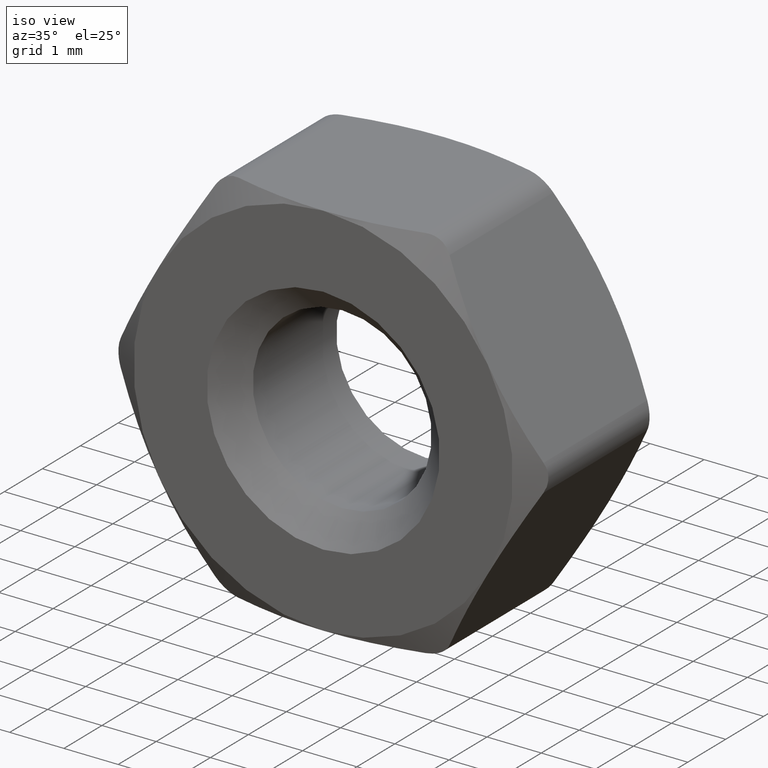
[diagram: clean part render]
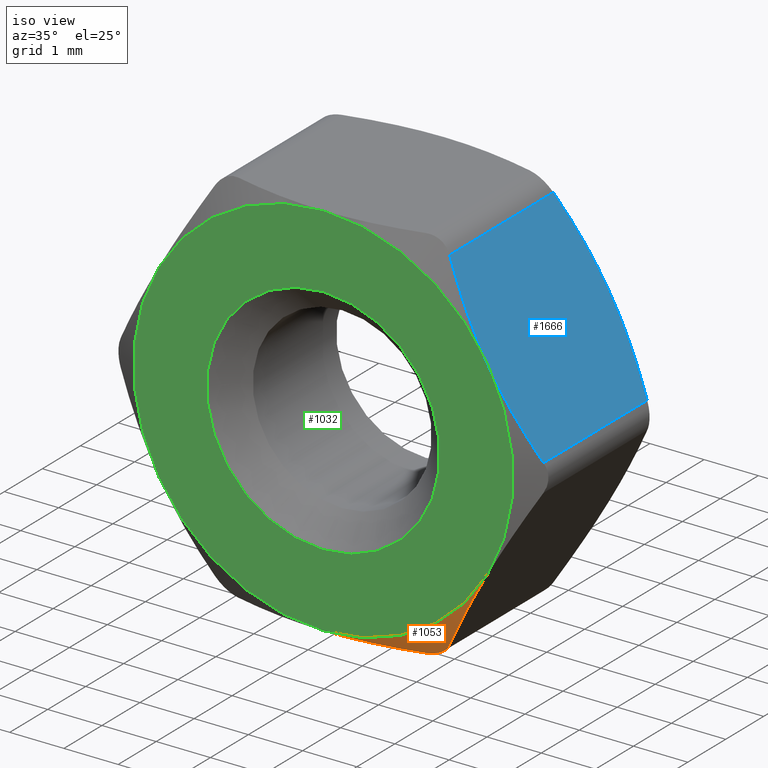
[diagram: same view with three faces highlighted in distinct colors, each labeled with its STEP entity id]
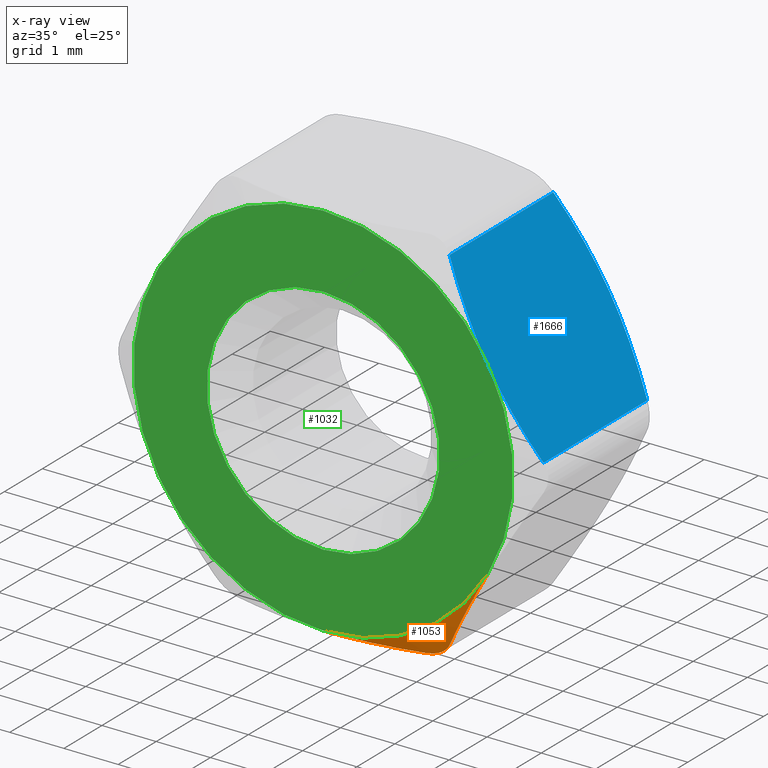
[diagram: x-ray of the same camera — body ghosted, the three highlighted faces saturated]
A machine part, iso view with three faces highlighted in distinct colors.
The next image is the same camera in x-ray (body ghosted, the three faces saturated) — at least one of them is partly hidden behind the body in this view.
Their STEP definitions:

[orange] entity #1053 — the highlighted conical surface has half-angle 60 deg.
#62 = CARTESIAN_POINT ( 'NONE',  ( 1.732050807568869200, -1.366101065752246800, -3.500000000000001300 ) ) ;
#92 = CARTESIAN_POINT ( 'NONE',  ( -3.386450907888041400E-016, -1.599999999999999200, 0.0000000000000000000 ) ) ;
#119 = AXIS2_PLACEMENT_3D ( 'NONE', #92, #1186, #1206 ) ;
#159 = CARTESIAN_POINT ( 'NONE',  ( 1.818213813996152100, -1.344036980735073200, -3.500000000000003100 ) ) ;
#194 = CONICAL_SURFACE ( 'NONE', #119, 3.500000000000000000, 1.047197551196603200 ) ;
#304 = CARTESIAN_POINT ( 'NONE',  ( 1.732050807568869200, -1.366101065752246800, -3.500000000000001300 ) ) ;
#307 = B_SPLINE_CURVE_WITH_KNOTS ( 'NONE', 3,
 ( #304, #159, #955, #319, #1401, #1564 ),
 .UNSPECIFIED., .F., .F.,
 ( 4, 2, 4 ),
 ( 2.045668567712605500E-018, 0.0002632573935146148600, 0.0005265147870292280900 ),
 .UNSPECIFIED. ) ;
#319 = CARTESIAN_POINT ( 'NONE',  ( 2.057833504183642000, -1.332013481293206100, -3.389344969317413800 ) ) ;
#331 = VERTEX_POINT ( 'NONE', #997 ) ;
#361 = ORIENTED_EDGE ( 'NONE', *, *, #1447, .T. ) ;
#429 = CARTESIAN_POINT ( 'NONE',  ( 1.450919357738891200, -1.438091453126729300, -3.500000000000002200 ) ) ;
#437 = ORIENTED_EDGE ( 'NONE', *, *, #769, .F. ) ;
#458 = VERTEX_POINT ( 'NONE', #1215 ) ;
#508 = AXIS2_PLACEMENT_3D ( 'NONE', #1881, #1591, #610 ) ;
#610 = DIRECTION ( 'NONE',  ( -1.776356839400250500E-015, 0.0000000000000000000, 1.000000000000000000 ) ) ;
#645 = CARTESIAN_POINT ( 'NONE',  ( 2.449406306941841000, -1.497437231825316600, -2.757503827997073800 ) ) ;
#725 = CARTESIAN_POINT ( 'NONE',  ( 0.2915641572602628600, -1.599999999999998800, -3.500000000000001300 ) ) ;
#731 = CARTESIAN_POINT ( 'NONE',  ( 1.732050807568869200, -1.366101065752246800, -3.500000000000001300 ) ) ;
#769 = EDGE_CURVE ( 'NONE', #458, #331, #1589, .T. ) ;
#813 = ORIENTED_EDGE ( 'NONE', *, *, #1144, .F. ) ;
#814 = CARTESIAN_POINT ( 'NONE',  ( 2.737935425120993300, -1.578227301213956900, -2.257756735847737500 ) ) ;
#907 = CARTESIAN_POINT ( 'NONE',  ( 1.166222246419597000, -1.496961480775119300, -3.500000000000001800 ) ) ;
#955 = CARTESIAN_POINT ( 'NONE',  ( 1.905537153561605000, -1.332088313469486500, -3.477102041811246800 ) ) ;
#971 = FACE_OUTER_BOUND ( 'NONE', #1593, .T. ) ;
#997 = CARTESIAN_POINT ( 'NONE',  ( 3.031088913245535600, -1.599999999999999900, -1.749999999999998400 ) ) ;
#1053 = ADVANCED_FACE ( 'NONE', ( #971 ), #194, .T. ) ;
#1081 = B_SPLINE_CURVE_WITH_KNOTS ( 'NONE', 3,
 ( #1925, #1129, #814, #645, #1433, #1937 ),
 .UNSPECIFIED., .F., .F.,
 ( 4, 2, 4 ),
 ( 0.002044882221487531500, 0.002915149854128587000, 0.003785417486769642500 ),
 .UNSPECIFIED. ) ;
#1129 = CARTESIAN_POINT ( 'NONE',  ( 2.884555072172297700, -1.600000000000004300, -2.003804057767061100 ) ) ;
#1144 = EDGE_CURVE ( 'NONE', #1890, #458, #1444, .T. ) ;
#1182 = CARTESIAN_POINT ( 'NONE',  ( 2.165063509461090600, -1.366101065752247000, -3.250000000000001800 ) ) ;
#1186 = DIRECTION ( 'NONE',  ( 2.116531817430027100E-016, 1.000000000000000000, 0.0000000000000000000 ) ) ;
#1206 = DIRECTION ( 'NONE',  ( 1.000000000000000000, -1.858632295689436100E-016, 0.0000000000000000000 ) ) ;
#1215 = CARTESIAN_POINT ( 'NONE',  ( -3.386450907888039500E-016, -1.599999999999999200, -3.500000000000000000 ) ) ;
#1384 = CARTESIAN_POINT ( 'NONE',  ( -3.386450907888039500E-016, -1.599999999999999200, -3.500000000000000000 ) ) ;
#1401 = CARTESIAN_POINT ( 'NONE',  ( 2.121969493532742200, -1.344030572379085500, -3.324641025090492500 ) ) ;
#1433 = CARTESIAN_POINT ( 'NONE',  ( 2.306667253663686100, -1.438623072130314400, -3.004735120499118400 ) ) ;
#1444 = B_SPLINE_CURVE_WITH_KNOTS ( 'NONE', 3,
 ( #731, #429, #907, #2026, #725, #1384 ),
 .UNSPECIFIED., .F., .F.,
 ( 4, 2, 4 ),
 ( 0.001780457575266044000, 0.002650971486567353900, 0.003521485397868663800 ),
 .UNSPECIFIED. ) ;
#1447 = EDGE_CURVE ( 'NONE', #1890, #1967, #307, .T. ) ;
#1564 = CARTESIAN_POINT ( 'NONE',  ( 2.165063509461090600, -1.366101065752247000, -3.250000000000001800 ) ) ;
#1589 = CIRCLE ( 'NONE', #508, 3.499999999999998700 ) ;
#1591 = DIRECTION ( 'NONE',  ( 0.0000000000000000000, -1.000000000000000000, -0.0000000000000000000 ) ) ;
#1593 = EDGE_LOOP ( 'NONE', ( #813, #361, #1846, #437 ) ) ;
#1599 = EDGE_CURVE ( 'NONE', #331, #1967, #1081, .T. ) ;
#1846 = ORIENTED_EDGE ( 'NONE', *, *, #1599, .F. ) ;
#1881 = CARTESIAN_POINT ( 'NONE',  ( -3.386450907888041400E-016, -1.600000000000000100, 1.283079225268731100E-015 ) ) ;
#1890 = VERTEX_POINT ( 'NONE', #62 ) ;
#1925 = CARTESIAN_POINT ( 'NONE',  ( 3.031088913245535600, -1.599999999999999900, -1.749999999999998400 ) ) ;
#1937 = CARTESIAN_POINT ( 'NONE',  ( 2.165063509461090600, -1.366101065752247000, -3.250000000000001800 ) ) ;
#1967 = VERTEX_POINT ( 'NONE', #1182 ) ;
#2026 = CARTESIAN_POINT ( 'NONE',  ( 0.5869129917412796400, -1.578217762318620200, -3.500000000000000900 ) ) ;

[blue] entity #1666 — the highlighted planar face has unit normal (-0.866, 0, -0.5).
#49 = CARTESIAN_POINT ( 'NONE',  ( 3.897114317029971800, -1.366101065752246800, 0.2500000000000067700 ) ) ;
#66 = EDGE_CURVE ( 'NONE', #1296, #1595, #671, .T. ) ;
#121 = EDGE_LOOP ( 'NONE', ( #176, #1643, #1268, #696, #1366, #302 ) ) ;
#132 = EDGE_CURVE ( 'NONE', #509, #1466, #1255, .T. ) ;
#152 = CARTESIAN_POINT ( 'NONE',  ( 3.031088913245533900, -1.599999999999999900, 1.750000000000001800 ) ) ;
#166 = CARTESIAN_POINT ( 'NONE',  ( 2.165063509457813200, -1.366101065750563000, 3.250000000005689200 ) ) ;
#167 = CARTESIAN_POINT ( 'NONE',  ( 3.897114317033258500, 1.366101065750563400, 0.2499999999943144400 ) ) ;
#175 = CARTESIAN_POINT ( 'NONE',  ( 2.449406306941848100, 1.497437231825313700, 2.757503827997071600 ) ) ;
#176 = ORIENTED_EDGE ( 'NONE', *, *, #324, .T. ) ;
#203 = CARTESIAN_POINT ( 'NONE',  ( 3.897114317033258500, 1.366101065750563400, 0.2499999999943144400 ) ) ;
#302 = ORIENTED_EDGE ( 'NONE', *, *, #132, .T. ) ;
#324 = EDGE_CURVE ( 'NONE', #1466, #1296, #1560, .T. ) ;
#342 = CARTESIAN_POINT ( 'NONE',  ( 2.020725942163693400, 1.600000000000000100, 3.499999999999996000 ) ) ;
#357 = CARTESIAN_POINT ( 'NONE',  ( 2.884555072172301700, 1.600000000000000800, 2.003804057767065900 ) ) ;
#481 = VERTEX_POINT ( 'NONE', #1536 ) ;
#498 = CARTESIAN_POINT ( 'NONE',  ( 3.897114317029972200, 1.600000000000000100, 0.2500000000000062700 ) ) ;
#499 = DIRECTION ( 'NONE',  ( -0.8660254037844386000, 0.0000000000000000000, -0.5000000000000003300 ) ) ;
#505 = PLANE ( 'NONE',  #1733 ) ;
#509 = VERTEX_POINT ( 'NONE', #2012 ) ;
#525 = CARTESIAN_POINT ( 'NONE',  ( 3.031088913245533900, -1.599999999999999900, 1.750000000000001800 ) ) ;
#544 = CARTESIAN_POINT ( 'NONE',  ( 3.324242401370072700, -1.578227301213953400, 1.242243264152266000 ) ) ;
#572 = FACE_OUTER_BOUND ( 'NONE', #121, .T. ) ;
#655 = CARTESIAN_POINT ( 'NONE',  ( 2.448897172363941900, -1.511465772224713800, 2.758385674953896000 ) ) ;
#661 = CARTESIAN_POINT ( 'NONE',  ( 2.736813175116616000, -1.600000000000001000, 2.259700529874124600 ) ) ;
#671 = LINE ( 'NONE', #498, #1565 ) ;
#676 = CARTESIAN_POINT ( 'NONE',  ( 3.177622754318768700, -1.600000000000001000, 1.496195942232939400 ) ) ;
#683 = CARTESIAN_POINT ( 'NONE',  ( 3.031088913245533900, 1.599999999999999900, 1.750000000000001800 ) ) ;
#696 = ORIENTED_EDGE ( 'NONE', *, *, #1749, .T. ) ;
#707 = B_SPLINE_CURVE_WITH_KNOTS ( 'NONE', 3,
 ( #1450, #357, #1621, #175, #1455, #1149 ),
 .UNSPECIFIED., .F., .F.,
 ( 4, 2, 4 ),
 ( 0.002044882221487522400, 0.002915149854128571400, 0.003785417486769620000 ),
 .UNSPECIFIED. ) ;
#844 = CARTESIAN_POINT ( 'NONE',  ( 3.613280654127129000, 1.511465772224714200, 0.7416143250461079100 ) ) ;
#848 = EDGE_CURVE ( 'NONE', #481, #509, #1216, .T. ) ;
#1010 = CARTESIAN_POINT ( 'NONE',  ( 3.612771519549222700, -1.497437231825314200, 0.7424961720029313900 ) ) ;
#1062 = CARTESIAN_POINT ( 'NONE',  ( 3.897114317029971800, -1.366101065752246800, 0.2500000000000067700 ) ) ;
#1114 = DIRECTION ( 'NONE',  ( 0.0000000000000000000, -1.000000000000000000, 0.0000000000000000000 ) ) ;
#1123 = DIRECTION ( 'NONE',  ( -0.5000000000000002200, 0.0000000000000000000, 0.8660254037844384900 ) ) ;
#1140 = CARTESIAN_POINT ( 'NONE',  ( 3.031088913245533900, -1.599999999999999900, 1.750000000000001800 ) ) ;
#1149 = CARTESIAN_POINT ( 'NONE',  ( 2.165063509461099500, 1.366101065752246100, 3.249999999999996900 ) ) ;
#1154 = CARTESIAN_POINT ( 'NONE',  ( 3.325364651374455200, 1.600000000000001400, 1.240299470125879800 ) ) ;
#1166 = CARTESIAN_POINT ( 'NONE',  ( 3.755510572827376300, -1.438623072130313300, 0.4952648795008892700 ) ) ;
#1216 = LINE ( 'NONE', #1723, #1381 ) ;
#1255 = B_SPLINE_CURVE_WITH_KNOTS ( 'NONE', 3,
 ( #166, #655, #661, #1140 ),
 .UNSPECIFIED., .F., .F.,
 ( 4, 4 ),
 ( 0.0002971722857521889000, 0.002044882221487520200 ),
 .UNSPECIFIED. ) ;
#1268 = ORIENTED_EDGE ( 'NONE', *, *, #1997, .T. ) ;
#1296 = VERTEX_POINT ( 'NONE', #1062 ) ;
#1297 = B_SPLINE_CURVE_WITH_KNOTS ( 'NONE', 3,
 ( #203, #844, #1154, #683 ),
 .UNSPECIFIED., .F., .F.,
 ( 4, 4 ),
 ( 0.0002971722857521890100, 0.002044882221487522400 ),
 .UNSPECIFIED. ) ;
#1366 = ORIENTED_EDGE ( 'NONE', *, *, #848, .T. ) ;
#1381 = VECTOR ( 'NONE', #1114, 1000.000000000000000 ) ;
#1450 = CARTESIAN_POINT ( 'NONE',  ( 3.031088913245533900, 1.599999999999999900, 1.750000000000001800 ) ) ;
#1455 = CARTESIAN_POINT ( 'NONE',  ( 2.306667253663695000, 1.438623072130312600, 3.004735120499114800 ) ) ;
#1466 = VERTEX_POINT ( 'NONE', #152 ) ;
#1536 = CARTESIAN_POINT ( 'NONE',  ( 2.165063509461099500, 1.366101065752246100, 3.249999999999996900 ) ) ;
#1560 = B_SPLINE_CURVE_WITH_KNOTS ( 'NONE', 3,
 ( #525, #676, #544, #1010, #1166, #49 ),
 .UNSPECIFIED., .F., .F.,
 ( 4, 2, 4 ),
 ( 0.002044882221487520200, 0.002915149854128569600, 0.003785417486769619500 ),
 .UNSPECIFIED. ) ;
#1565 = VECTOR ( 'NONE', #1780, 1000.000000000000000 ) ;
#1595 = VERTEX_POINT ( 'NONE', #167 ) ;
#1617 = VERTEX_POINT ( 'NONE', #1902 ) ;
#1621 = CARTESIAN_POINT ( 'NONE',  ( 2.737935425120999100, 1.578227301213953200, 2.257756735847739300 ) ) ;
#1643 = ORIENTED_EDGE ( 'NONE', *, *, #66, .T. ) ;
#1666 = ADVANCED_FACE ( 'NONE', ( #572 ), #505, .F. ) ;
#1723 = CARTESIAN_POINT ( 'NONE',  ( 2.165063509461099500, 1.600000000000000100, 3.249999999999996900 ) ) ;
#1733 = AXIS2_PLACEMENT_3D ( 'NONE', #342, #499, #1123 ) ;
#1749 = EDGE_CURVE ( 'NONE', #1617, #481, #707, .T. ) ;
#1780 = DIRECTION ( 'NONE',  ( -0.0000000000000000000, 1.000000000000000000, -0.0000000000000000000 ) ) ;
#1902 = CARTESIAN_POINT ( 'NONE',  ( 3.031088913245533900, 1.599999999999999900, 1.750000000000001800 ) ) ;
#1997 = EDGE_CURVE ( 'NONE', #1595, #1617, #1297, .T. ) ;
#2012 = CARTESIAN_POINT ( 'NONE',  ( 2.165063509457813200, -1.366101065750563000, 3.250000000005689200 ) ) ;

[green] entity #1032 — the highlighted planar face has unit normal (-0, 1, 0).
#10 = CARTESIAN_POINT ( 'NONE',  ( 0.0000000000000000000, -1.600000000000000100, 0.0000000000000000000 ) ) ;
#11 = CARTESIAN_POINT ( 'NONE',  ( -3.386450907888041400E-016, -1.600000000000000100, 1.283079225268731100E-015 ) ) ;
#78 = ORIENTED_EDGE ( 'NONE', *, *, #1783, .T. ) ;
#127 = DIRECTION ( 'NONE',  ( 0.0000000000000000000, -1.000000000000000000, -0.0000000000000000000 ) ) ;
#152 = CARTESIAN_POINT ( 'NONE',  ( 3.031088913245533900, -1.599999999999999900, 1.750000000000001800 ) ) ;
#216 = EDGE_CURVE ( 'NONE', #615, #615, #617, .T. ) ;
#229 = ORIENTED_EDGE ( 'NONE', *, *, #216, .T. ) ;
#237 = DIRECTION ( 'NONE',  ( 0.0000000000000000000, -1.000000000000000000, -0.0000000000000000000 ) ) ;
#271 = DIRECTION ( 'NONE',  ( -2.116531817430027100E-016, -1.000000000000000000, -0.0000000000000000000 ) ) ;
#296 = FACE_BOUND ( 'NONE', #382, .T. ) ;
#331 = VERTEX_POINT ( 'NONE', #997 ) ;
#377 = CIRCLE ( 'NONE', #396, 3.499999999999998700 ) ;
#382 = EDGE_LOOP ( 'NONE', ( #229 ) ) ;
#396 = AXIS2_PLACEMENT_3D ( 'NONE', #1561, #127, #489 ) ;
#439 = EDGE_CURVE ( 'NONE', #463, #458, #1365, .T. ) ;
#454 = CARTESIAN_POINT ( 'NONE',  ( -3.031088913245537000, -1.599999999999998500, -1.749999999999998400 ) ) ;
#458 = VERTEX_POINT ( 'NONE', #1215 ) ;
#461 = EDGE_LOOP ( 'NONE', ( #1542, #1819, #579, #1825, #1172, #78 ) ) ;
#463 = VERTEX_POINT ( 'NONE', #454 ) ;
#489 = DIRECTION ( 'NONE',  ( 0.0000000000000000000, 0.0000000000000000000, 1.000000000000000000 ) ) ;
#495 = AXIS2_PLACEMENT_3D ( 'NONE', #640, #237, #1991 ) ;
#508 = AXIS2_PLACEMENT_3D ( 'NONE', #1881, #1591, #610 ) ;
#569 = EDGE_CURVE ( 'NONE', #1466, #1497, #1196, .T. ) ;
#579 = ORIENTED_EDGE ( 'NONE', *, *, #960, .T. ) ;
#610 = DIRECTION ( 'NONE',  ( -1.776356839400250500E-015, 0.0000000000000000000, 1.000000000000000000 ) ) ;
#615 = VERTEX_POINT ( 'NONE', #1951 ) ;
#617 = CIRCLE ( 'NONE', #1534, 2.149999999999999000 ) ;
#640 = CARTESIAN_POINT ( 'NONE',  ( -3.386450907888041400E-016, -1.600000000000000100, 1.283079225268731100E-015 ) ) ;
#652 = AXIS2_PLACEMENT_3D ( 'NONE', #1354, #1202, #720 ) ;
#663 = CIRCLE ( 'NONE', #495, 3.499999999999998700 ) ;
#720 = DIRECTION ( 'NONE',  ( 0.0000000000000000000, -0.0000000000000000000, 1.000000000000000000 ) ) ;
#729 = CARTESIAN_POINT ( 'NONE',  ( -3.386450907888041400E-016, -1.599999999999999200, 0.0000000000000000000 ) ) ;
#744 = EDGE_CURVE ( 'NONE', #1497, #1437, #377, .T. ) ;
#769 = EDGE_CURVE ( 'NONE', #458, #331, #1589, .T. ) ;
#790 = CARTESIAN_POINT ( 'NONE',  ( -3.031088913245535200, -1.599999999999998500, 1.750000000000000700 ) ) ;
#904 = DIRECTION ( 'NONE',  ( 0.0000000000000000000, -1.000000000000000000, -0.0000000000000000000 ) ) ;
#960 = EDGE_CURVE ( 'NONE', #1437, #463, #663, .T. ) ;
#963 = DIRECTION ( 'NONE',  ( 1.776356839400250500E-015, 0.0000000000000000000, 1.000000000000000000 ) ) ;
#969 = DIRECTION ( 'NONE',  ( 0.0000000000000000000, 0.0000000000000000000, 1.000000000000000000 ) ) ;
#997 = CARTESIAN_POINT ( 'NONE',  ( 3.031088913245535600, -1.599999999999999900, -1.749999999999998400 ) ) ;
#1032 = ADVANCED_FACE ( 'NONE', ( #296, #2034 ), #1050, .F. ) ;
#1050 = PLANE ( 'NONE',  #652 ) ;
#1070 = AXIS2_PLACEMENT_3D ( 'NONE', #1529, #904, #1861 ) ;
#1172 = ORIENTED_EDGE ( 'NONE', *, *, #769, .T. ) ;
#1196 = CIRCLE ( 'NONE', #1282, 3.500000000000000000 ) ;
#1202 = DIRECTION ( 'NONE',  ( -0.0000000000000000000, 1.000000000000000000, 0.0000000000000000000 ) ) ;
#1215 = CARTESIAN_POINT ( 'NONE',  ( -3.386450907888039500E-016, -1.599999999999999200, -3.500000000000000000 ) ) ;
#1282 = AXIS2_PLACEMENT_3D ( 'NONE', #729, #271, #1706 ) ;
#1354 = CARTESIAN_POINT ( 'NONE',  ( 0.0000000000000000000, -1.600000000000000100, 0.0000000000000000000 ) ) ;
#1365 = CIRCLE ( 'NONE', #1070, 3.499999999999998700 ) ;
#1411 = CARTESIAN_POINT ( 'NONE',  ( 2.665984106685509400E-015, -1.599999999999999200, 3.500000000000000000 ) ) ;
#1437 = VERTEX_POINT ( 'NONE', #790 ) ;
#1466 = VERTEX_POINT ( 'NONE', #152 ) ;
#1497 = VERTEX_POINT ( 'NONE', #1411 ) ;
#1529 = CARTESIAN_POINT ( 'NONE',  ( -3.386450907888041400E-016, -1.600000000000000100, 1.283079225268731100E-015 ) ) ;
#1534 = AXIS2_PLACEMENT_3D ( 'NONE', #10, #1917, #969 ) ;
#1542 = ORIENTED_EDGE ( 'NONE', *, *, #569, .T. ) ;
#1561 = CARTESIAN_POINT ( 'NONE',  ( -3.386450907888041400E-016, -1.600000000000000100, 1.283079225268731100E-015 ) ) ;
#1589 = CIRCLE ( 'NONE', #508, 3.499999999999998700 ) ;
#1591 = DIRECTION ( 'NONE',  ( 0.0000000000000000000, -1.000000000000000000, -0.0000000000000000000 ) ) ;
#1594 = DIRECTION ( 'NONE',  ( 0.0000000000000000000, -1.000000000000000000, -0.0000000000000000000 ) ) ;
#1706 = DIRECTION ( 'NONE',  ( 1.000000000000000000, -1.858632295689436100E-016, 0.0000000000000000000 ) ) ;
#1783 = EDGE_CURVE ( 'NONE', #331, #1466, #1842, .T. ) ;
#1819 = ORIENTED_EDGE ( 'NONE', *, *, #744, .T. ) ;
#1825 = ORIENTED_EDGE ( 'NONE', *, *, #439, .T. ) ;
#1842 = CIRCLE ( 'NONE', #1869, 3.499999999999998700 ) ;
#1861 = DIRECTION ( 'NONE',  ( 1.776356839400250500E-015, 0.0000000000000000000, 1.000000000000000000 ) ) ;
#1869 = AXIS2_PLACEMENT_3D ( 'NONE', #11, #1594, #963 ) ;
#1881 = CARTESIAN_POINT ( 'NONE',  ( -3.386450907888041400E-016, -1.600000000000000100, 1.283079225268731100E-015 ) ) ;
#1917 = DIRECTION ( 'NONE',  ( -0.0000000000000000000, 1.000000000000000000, 0.0000000000000000000 ) ) ;
#1951 = CARTESIAN_POINT ( 'NONE',  ( 0.0000000000000000000, -1.600000000000000100, 2.149999999999999000 ) ) ;
#1991 = DIRECTION ( 'NONE',  ( 0.0000000000000000000, 0.0000000000000000000, 1.000000000000000000 ) ) ;
#2034 = FACE_OUTER_BOUND ( 'NONE', #461, .T. ) ;